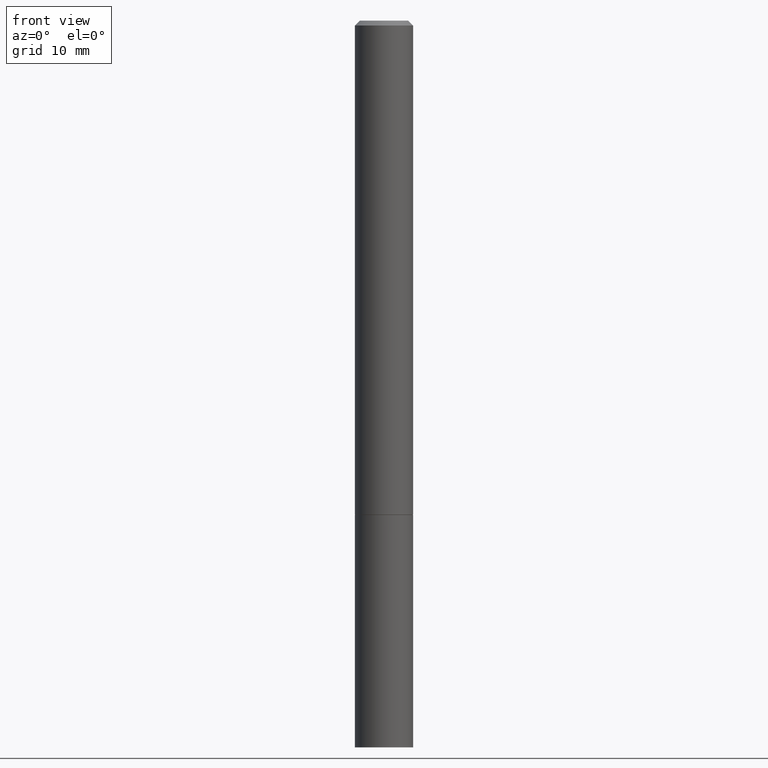
[diagram: clean part render]
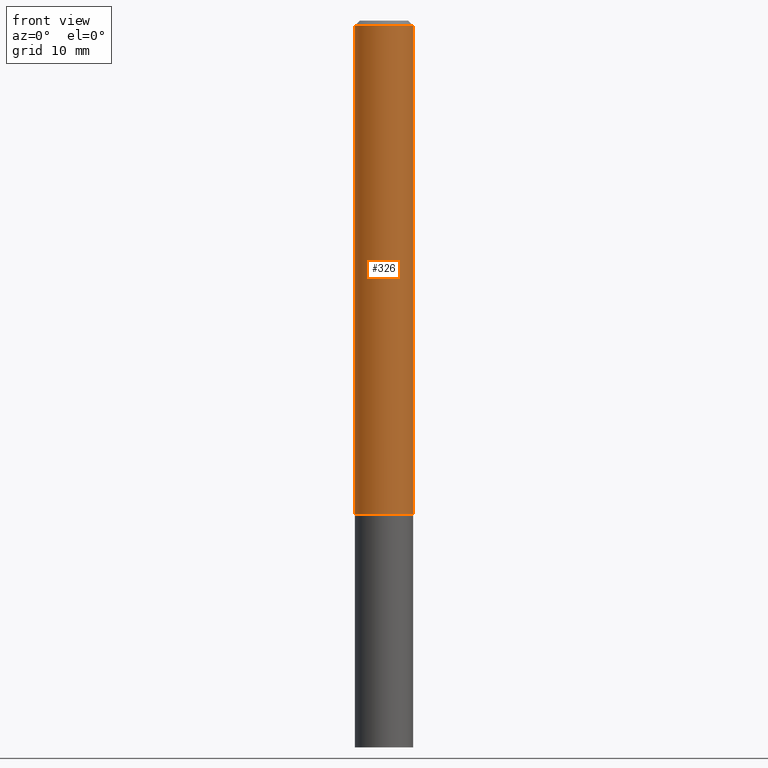
[diagram: same view with one face highlighted and labeled with its STEP entity id]
A machine part, front view. The second image highlights one B-rep face of the part: STEP entity #326.
In plain terms, the highlighted cylindrical surface (edge-blend (fillet) strip) has radius 2.9997 mm, axis along (-0, 0, 1).
Its self-contained STEP definition (entity closure, byte-faithful):
#10 = CARTESIAN_POINT ( 'NONE',  ( 0.1180999999999998995, -8.246878922347473751E-16, 5.758764772214994835E-30 ) ) ;
#14 = DIRECTION ( 'NONE',  ( -2.445468806185136597E-29, 3.491481338843145583E-15, 1.000000000000000000 ) ) ;
#28 = ORIENTED_EDGE ( 'NONE', *, *, #324, .T. ) ;
#41 = CARTESIAN_POINT ( 'NONE',  ( 4.890937612370280165E-31, -6.982962677686301470E-17, -0.02000000000000003164 ) ) ;
#42 = EDGE_CURVE ( 'NONE', #365, #202, #124, .T. ) ;
#52 = AXIS2_PLACEMENT_3D ( 'NONE', #41, #268, #240 ) ;
#59 = FACE_OUTER_BOUND ( 'NONE', #198, .T. ) ;
#95 = ORIENTED_EDGE ( 'NONE', *, *, #287, .F. ) ;
#102 = VECTOR ( 'NONE', #167, 39.37007874015748143 ) ;
#118 = CARTESIAN_POINT ( 'NONE',  ( 4.907811347132949706E-29, -7.007053898924307126E-15, -2.006899999999999462 ) ) ;
#123 = EDGE_CURVE ( 'NONE', #165, #335, #210, .T. ) ;
#124 = CIRCLE ( 'NONE', #269, 0.1181000000000000105 ) ;
#126 = CYLINDRICAL_SURFACE ( 'NONE', #311, 0.1180999999999998995 ) ;
#159 = CARTESIAN_POINT ( 'NONE',  ( 0.1180999999999997746, -8.800544403136792597E-16, -0.02000000000000003164 ) ) ;
#165 = VERTEX_POINT ( 'NONE', #189 ) ;
#167 = DIRECTION ( 'NONE',  ( -2.445468806185136877E-29, 3.491481338843145188E-15, 1.000000000000000000 ) ) ;
#189 = CARTESIAN_POINT ( 'NONE',  ( -0.1180999999999997746, 7.548582654578835839E-16, -0.02000000000000003164 ) ) ;
#198 = EDGE_LOOP ( 'NONE', ( #95, #228, #28, #304 ) ) ;
#202 = VERTEX_POINT ( 'NONE', #346 ) ;
#204 = DIRECTION ( 'NONE',  ( -2.445468806185136597E-29, 3.491481338843145583E-15, 1.000000000000000000 ) ) ;
#210 = CIRCLE ( 'NONE', #52, 0.1180999999999997746 ) ;
#218 = VECTOR ( 'NONE', #295, 39.37007874015748143 ) ;
#228 = ORIENTED_EDGE ( 'NONE', *, *, #42, .T. ) ;
#238 = CARTESIAN_POINT ( 'NONE',  ( 0.000000000000000000, 0.000000000000000000, 0.000000000000000000 ) ) ;
#240 = DIRECTION ( 'NONE',  ( 1.000000000000000000, -6.982962677686266711E-15, 0.000000000000000000 ) ) ;
#268 = DIRECTION ( 'NONE',  ( -2.445468806185136597E-29, 3.491481338843145583E-15, 1.000000000000000000 ) ) ;
#269 = AXIS2_PLACEMENT_3D ( 'NONE', #118, #204, #320 ) ;
#284 = LINE ( 'NONE', #315, #102 ) ;
#287 = EDGE_CURVE ( 'NONE', #365, #165, #284, .T. ) ;
#292 = LINE ( 'NONE', #10, #218 ) ;
#295 = DIRECTION ( 'NONE',  ( -2.445468806185136877E-29, 3.491481338843145188E-15, 1.000000000000000000 ) ) ;
#299 = DIRECTION ( 'NONE',  ( 1.000000000000000000, -6.982962677686266711E-15, 4.876176775795935232E-29 ) ) ;
#304 = ORIENTED_EDGE ( 'NONE', *, *, #123, .F. ) ;
#311 = AXIS2_PLACEMENT_3D ( 'NONE', #238, #14, #299 ) ;
#315 = CARTESIAN_POINT ( 'NONE',  ( -0.1180999999999998995, 8.391509709326776054E-16, -5.809262341591038879E-30 ) ) ;
#320 = DIRECTION ( 'NONE',  ( 1.000000000000000000, -6.982962677686264344E-15, 0.000000000000000000 ) ) ;
#324 = EDGE_CURVE ( 'NONE', #202, #335, #292, .T. ) ;
#326 = ADVANCED_FACE ( 'NONE', ( #59 ), #126, .T. ) ;
#335 = VERTEX_POINT ( 'NONE', #159 ) ;
#346 = CARTESIAN_POINT ( 'NONE',  ( 0.1181000000000000105, -7.831741791159054599E-15, -2.006899999999999462 ) ) ;
#348 = CARTESIAN_POINT ( 'NONE',  ( -0.1181000000000000383, -2.699290791917902676E-15, -2.006899999999999462 ) ) ;
#365 = VERTEX_POINT ( 'NONE', #348 ) ;